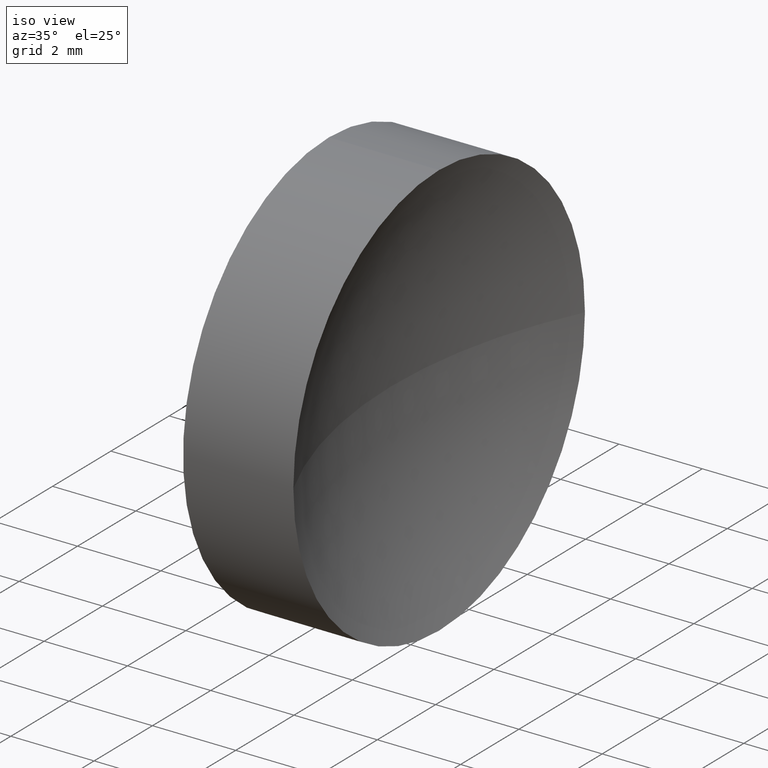
[diagram: clean part render]
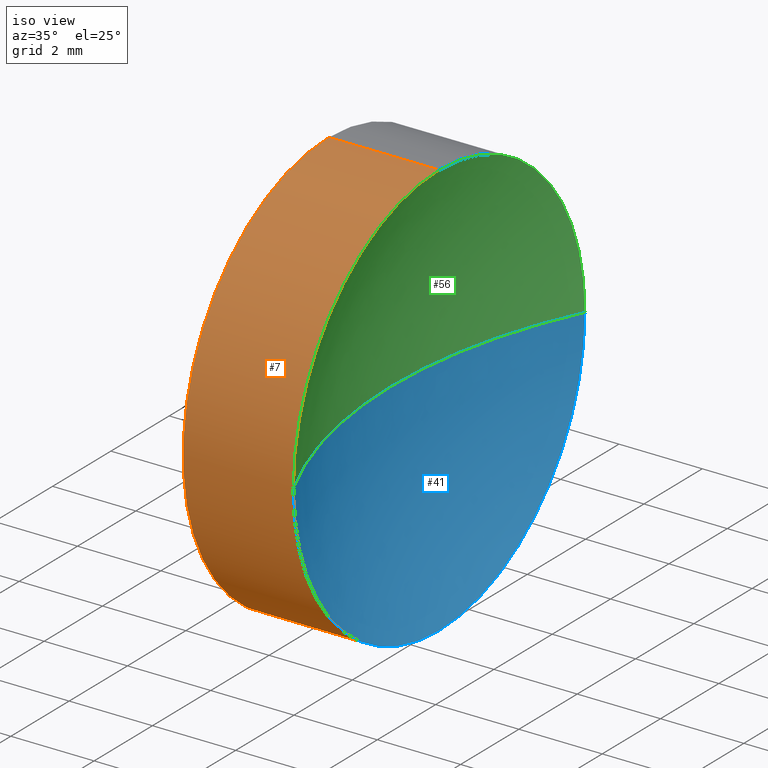
[diagram: same view with three faces highlighted in distinct colors, each labeled with its STEP entity id]
A machine part, iso view with three faces highlighted in distinct colors.
Their STEP definitions:

[orange] entity #7 — the highlighted cylindrical surface (partial cylindrical patch) has radius 5 mm, axis along (-1, -0, -0).
#3 = CARTESIAN_POINT ( 'NONE',  ( 47.70171121220715100, 28.47759563463748100, 0.0000000000000000000 ) ) ;
#4 = VERTEX_POINT ( 'NONE', #21 ) ;
#7 = ADVANCED_FACE ( 'NONE', ( #61 ), #143, .T. ) ;
#8 = ORIENTED_EDGE ( 'NONE', *, *, #125, .T. ) ;
#9 = VERTEX_POINT ( 'NONE', #63 ) ;
#15 = DIRECTION ( 'NONE',  ( -1.000000000000000000, -0.0000000000000000000, -0.0000000000000000000 ) ) ;
#20 = DIRECTION ( 'NONE',  ( -1.000000000000000000, -0.0000000000000000000, -0.0000000000000000000 ) ) ;
#21 = CARTESIAN_POINT ( 'NONE',  ( 50.34998972644154900, 28.47759563463748100, 4.999999999999990200 ) ) ;
#23 = VECTOR ( 'NONE', #15, 1000.000000000000000 ) ;
#31 = VECTOR ( 'NONE', #76, 1000.000000000000000 ) ;
#35 = DIRECTION ( 'NONE',  ( 0.0000000000000000000, 0.0000000000000000000, 1.000000000000000000 ) ) ;
#47 = ORIENTED_EDGE ( 'NONE', *, *, #118, .F. ) ;
#61 = FACE_OUTER_BOUND ( 'NONE', #154, .T. ) ;
#62 = AXIS2_PLACEMENT_3D ( 'NONE', #103, #79, #177 ) ;
#63 = CARTESIAN_POINT ( 'NONE',  ( 50.34998972644154900, 28.47759563463748100, -4.999999999999990200 ) ) ;
#65 = CIRCLE ( 'NONE', #138, 4.999999999999997300 ) ;
#68 = EDGE_CURVE ( 'NONE', #9, #85, #73, .T. ) ;
#72 = VERTEX_POINT ( 'NONE', #91 ) ;
#73 = LINE ( 'NONE', #105, #31 ) ;
#75 = CARTESIAN_POINT ( 'NONE',  ( 44.78209190302423800, 28.47759563463748100, 4.999999999999993800 ) ) ;
#76 = DIRECTION ( 'NONE',  ( -1.000000000000000000, -0.0000000000000000000, -0.0000000000000000000 ) ) ;
#79 = DIRECTION ( 'NONE',  ( -1.000000000000000000, -0.0000000000000000000, -0.0000000000000000000 ) ) ;
#81 = AXIS2_PLACEMENT_3D ( 'NONE', #134, #166, #150 ) ;
#85 = VERTEX_POINT ( 'NONE', #163 ) ;
#91 = CARTESIAN_POINT ( 'NONE',  ( 50.34998972644154900, 23.47759563463749200, 0.0000000000000000000 ) ) ;
#99 = LINE ( 'NONE', #75, #23 ) ;
#103 = CARTESIAN_POINT ( 'NONE',  ( 50.34998972644154900, 28.47759563463748100, 0.0000000000000000000 ) ) ;
#105 = CARTESIAN_POINT ( 'NONE',  ( 44.78209190302423800, 28.47759563463748100, -4.999999999999993800 ) ) ;
#108 = EDGE_CURVE ( 'NONE', #9, #72, #140, .T. ) ;
#109 = ORIENTED_EDGE ( 'NONE', *, *, #68, .F. ) ;
#115 = CIRCLE ( 'NONE', #62, 4.999999999999990200 ) ;
#118 = EDGE_CURVE ( 'NONE', #85, #148, #65, .T. ) ;
#119 = CARTESIAN_POINT ( 'NONE',  ( 50.34998972644154900, 28.47759563463748100, 0.0000000000000000000 ) ) ;
#120 = ORIENTED_EDGE ( 'NONE', *, *, #108, .T. ) ;
#125 = EDGE_CURVE ( 'NONE', #72, #4, #115, .T. ) ;
#134 = CARTESIAN_POINT ( 'NONE',  ( 44.78209190302423800, 28.47759563463748100, 0.0000000000000000000 ) ) ;
#138 = AXIS2_PLACEMENT_3D ( 'NONE', #3, #20, #35 ) ;
#140 = CIRCLE ( 'NONE', #185, 4.999999999999990200 ) ;
#143 = CYLINDRICAL_SURFACE ( 'NONE', #81, 4.999999999999993800 ) ;
#145 = DIRECTION ( 'NONE',  ( -1.000000000000000000, -0.0000000000000000000, -0.0000000000000000000 ) ) ;
#146 = EDGE_CURVE ( 'NONE', #4, #148, #99, .T. ) ;
#148 = VERTEX_POINT ( 'NONE', #164 ) ;
#150 = DIRECTION ( 'NONE',  ( 0.0000000000000000000, 0.0000000000000000000, 1.000000000000000000 ) ) ;
#154 = EDGE_LOOP ( 'NONE', ( #109, #120, #8, #172, #47 ) ) ;
#163 = CARTESIAN_POINT ( 'NONE',  ( 47.70171121220715100, 28.47759563463748100, -4.999999999999997300 ) ) ;
#164 = CARTESIAN_POINT ( 'NONE',  ( 47.70171121220715100, 28.47759563463748100, 4.999999999999997300 ) ) ;
#166 = DIRECTION ( 'NONE',  ( -1.000000000000000000, -0.0000000000000000000, -0.0000000000000000000 ) ) ;
#172 = ORIENTED_EDGE ( 'NONE', *, *, #146, .T. ) ;
#176 = DIRECTION ( 'NONE',  ( 0.0000000000000000000, 0.0000000000000000000, 1.000000000000000000 ) ) ;
#177 = DIRECTION ( 'NONE',  ( 0.0000000000000000000, 0.0000000000000000000, 1.000000000000000000 ) ) ;
#185 = AXIS2_PLACEMENT_3D ( 'NONE', #119, #145, #176 ) ;

[blue] entity #41 — the highlighted spherical surface has radius 11.46 mm.
#1 = CIRCLE ( 'NONE', #94, 11.45999999999999000 ) ;
#9 = VERTEX_POINT ( 'NONE', #63 ) ;
#17 = DIRECTION ( 'NONE',  ( 0.0000000000000000000, 0.0000000000000000000, 1.000000000000000000 ) ) ;
#24 = CARTESIAN_POINT ( 'NONE',  ( 60.66171121220714500, 28.47759563463748100, 0.0000000000000000000 ) ) ;
#25 = FACE_OUTER_BOUND ( 'NONE', #86, .T. ) ;
#29 = EDGE_CURVE ( 'NONE', #72, #100, #110, .T. ) ;
#30 = SPHERICAL_SURFACE ( 'NONE', #44, 11.45999999999999000 ) ;
#34 = DIRECTION ( 'NONE',  ( -1.000000000000000000, -0.0000000000000000000, -0.0000000000000000000 ) ) ;
#37 = DIRECTION ( 'NONE',  ( 0.0000000000000000000, -1.224646799147353200E-016, 1.000000000000000000 ) ) ;
#38 = CARTESIAN_POINT ( 'NONE',  ( 60.66171121220714500, 28.47759563463748100, 0.0000000000000000000 ) ) ;
#39 = DIRECTION ( 'NONE',  ( 0.0000000000000000000, 0.0000000000000000000, -1.000000000000000000 ) ) ;
#41 = ADVANCED_FACE ( 'NONE', ( #25 ), #30, .F. ) ;
#43 = VERTEX_POINT ( 'NONE', #106 ) ;
#44 = AXIS2_PLACEMENT_3D ( 'NONE', #24, #136, #178 ) ;
#49 = ORIENTED_EDGE ( 'NONE', *, *, #104, .T. ) ;
#50 = ORIENTED_EDGE ( 'NONE', *, *, #29, .F. ) ;
#52 = DIRECTION ( 'NONE',  ( -1.000000000000000000, 0.0000000000000000000, 0.0000000000000000000 ) ) ;
#55 = EDGE_CURVE ( 'NONE', #43, #9, #95, .T. ) ;
#57 = AXIS2_PLACEMENT_3D ( 'NONE', #38, #39, #52 ) ;
#63 = CARTESIAN_POINT ( 'NONE',  ( 50.34998972644154900, 28.47759563463748100, -4.999999999999990200 ) ) ;
#72 = VERTEX_POINT ( 'NONE', #91 ) ;
#86 = EDGE_LOOP ( 'NONE', ( #124, #49, #50, #137 ) ) ;
#91 = CARTESIAN_POINT ( 'NONE',  ( 50.34998972644154900, 23.47759563463749200, 0.0000000000000000000 ) ) ;
#94 = AXIS2_PLACEMENT_3D ( 'NONE', #151, #37, #132 ) ;
#95 = CIRCLE ( 'NONE', #127, 4.999999999999990200 ) ;
#100 = VERTEX_POINT ( 'NONE', #175 ) ;
#102 = CARTESIAN_POINT ( 'NONE',  ( 50.34998972644154900, 28.47759563463748100, 0.0000000000000000000 ) ) ;
#104 = EDGE_CURVE ( 'NONE', #43, #100, #1, .T. ) ;
#106 = CARTESIAN_POINT ( 'NONE',  ( 50.34998972644154900, 33.47759563463747400, 6.123233995736756400E-016 ) ) ;
#108 = EDGE_CURVE ( 'NONE', #9, #72, #140, .T. ) ;
#110 = CIRCLE ( 'NONE', #57, 11.45999999999999000 ) ;
#119 = CARTESIAN_POINT ( 'NONE',  ( 50.34998972644154900, 28.47759563463748100, 0.0000000000000000000 ) ) ;
#124 = ORIENTED_EDGE ( 'NONE', *, *, #55, .F. ) ;
#127 = AXIS2_PLACEMENT_3D ( 'NONE', #102, #34, #17 ) ;
#132 = DIRECTION ( 'NONE',  ( 0.0000000000000000000, -1.000000000000000000, -1.224646799147353200E-016 ) ) ;
#136 = DIRECTION ( 'NONE',  ( 0.0000000000000000000, 0.0000000000000000000, 1.000000000000000000 ) ) ;
#137 = ORIENTED_EDGE ( 'NONE', *, *, #108, .F. ) ;
#140 = CIRCLE ( 'NONE', #185, 4.999999999999990200 ) ;
#145 = DIRECTION ( 'NONE',  ( -1.000000000000000000, -0.0000000000000000000, -0.0000000000000000000 ) ) ;
#151 = CARTESIAN_POINT ( 'NONE',  ( 60.66171121220714500, 28.47759563463748100, 0.0000000000000000000 ) ) ;
#175 = CARTESIAN_POINT ( 'NONE',  ( 49.20171121220715800, 28.47759563463748100, 0.0000000000000000000 ) ) ;
#176 = DIRECTION ( 'NONE',  ( 0.0000000000000000000, 0.0000000000000000000, 1.000000000000000000 ) ) ;
#178 = DIRECTION ( 'NONE',  ( 0.0000000000000000000, -1.000000000000000000, 0.0000000000000000000 ) ) ;
#185 = AXIS2_PLACEMENT_3D ( 'NONE', #119, #145, #176 ) ;

[green] entity #56 — the highlighted spherical surface has radius 11.46 mm.
#1 = CIRCLE ( 'NONE', #94, 11.45999999999999000 ) ;
#2 = DIRECTION ( 'NONE',  ( 0.0000000000000000000, 0.0000000000000000000, 1.000000000000000000 ) ) ;
#4 = VERTEX_POINT ( 'NONE', #21 ) ;
#18 = CARTESIAN_POINT ( 'NONE',  ( 60.66171121220714500, 28.47759563463748100, 0.0000000000000000000 ) ) ;
#21 = CARTESIAN_POINT ( 'NONE',  ( 50.34998972644154900, 28.47759563463748100, 4.999999999999990200 ) ) ;
#29 = EDGE_CURVE ( 'NONE', #72, #100, #110, .T. ) ;
#37 = DIRECTION ( 'NONE',  ( 0.0000000000000000000, -1.224646799147353200E-016, 1.000000000000000000 ) ) ;
#38 = CARTESIAN_POINT ( 'NONE',  ( 60.66171121220714500, 28.47759563463748100, 0.0000000000000000000 ) ) ;
#39 = DIRECTION ( 'NONE',  ( 0.0000000000000000000, 0.0000000000000000000, -1.000000000000000000 ) ) ;
#40 = ORIENTED_EDGE ( 'NONE', *, *, #125, .F. ) ;
#43 = VERTEX_POINT ( 'NONE', #106 ) ;
#45 = SPHERICAL_SURFACE ( 'NONE', #88, 11.45999999999999000 ) ;
#48 = CARTESIAN_POINT ( 'NONE',  ( 50.34998972644154900, 28.47759563463748100, 0.0000000000000000000 ) ) ;
#52 = DIRECTION ( 'NONE',  ( -1.000000000000000000, 0.0000000000000000000, 0.0000000000000000000 ) ) ;
#56 = ADVANCED_FACE ( 'NONE', ( #67 ), #45, .F. ) ;
#57 = AXIS2_PLACEMENT_3D ( 'NONE', #38, #39, #52 ) ;
#62 = AXIS2_PLACEMENT_3D ( 'NONE', #103, #79, #177 ) ;
#67 = FACE_OUTER_BOUND ( 'NONE', #162, .T. ) ;
#72 = VERTEX_POINT ( 'NONE', #91 ) ;
#79 = DIRECTION ( 'NONE',  ( -1.000000000000000000, -0.0000000000000000000, -0.0000000000000000000 ) ) ;
#83 = ORIENTED_EDGE ( 'NONE', *, *, #29, .T. ) ;
#88 = AXIS2_PLACEMENT_3D ( 'NONE', #18, #2, #131 ) ;
#90 = AXIS2_PLACEMENT_3D ( 'NONE', #48, #121, #165 ) ;
#91 = CARTESIAN_POINT ( 'NONE',  ( 50.34998972644154900, 23.47759563463749200, 0.0000000000000000000 ) ) ;
#94 = AXIS2_PLACEMENT_3D ( 'NONE', #151, #37, #132 ) ;
#100 = VERTEX_POINT ( 'NONE', #175 ) ;
#103 = CARTESIAN_POINT ( 'NONE',  ( 50.34998972644154900, 28.47759563463748100, 0.0000000000000000000 ) ) ;
#104 = EDGE_CURVE ( 'NONE', #43, #100, #1, .T. ) ;
#106 = CARTESIAN_POINT ( 'NONE',  ( 50.34998972644154900, 33.47759563463747400, 6.123233995736756400E-016 ) ) ;
#110 = CIRCLE ( 'NONE', #57, 11.45999999999999000 ) ;
#115 = CIRCLE ( 'NONE', #62, 4.999999999999990200 ) ;
#117 = ORIENTED_EDGE ( 'NONE', *, *, #141, .F. ) ;
#121 = DIRECTION ( 'NONE',  ( -1.000000000000000000, -0.0000000000000000000, -0.0000000000000000000 ) ) ;
#125 = EDGE_CURVE ( 'NONE', #72, #4, #115, .T. ) ;
#131 = DIRECTION ( 'NONE',  ( 0.0000000000000000000, -1.000000000000000000, 0.0000000000000000000 ) ) ;
#132 = DIRECTION ( 'NONE',  ( 0.0000000000000000000, -1.000000000000000000, -1.224646799147353200E-016 ) ) ;
#141 = EDGE_CURVE ( 'NONE', #4, #43, #152, .T. ) ;
#151 = CARTESIAN_POINT ( 'NONE',  ( 60.66171121220714500, 28.47759563463748100, 0.0000000000000000000 ) ) ;
#152 = CIRCLE ( 'NONE', #90, 4.999999999999990200 ) ;
#162 = EDGE_LOOP ( 'NONE', ( #181, #117, #40, #83 ) ) ;
#165 = DIRECTION ( 'NONE',  ( 0.0000000000000000000, 0.0000000000000000000, 1.000000000000000000 ) ) ;
#175 = CARTESIAN_POINT ( 'NONE',  ( 49.20171121220715800, 28.47759563463748100, 0.0000000000000000000 ) ) ;
#177 = DIRECTION ( 'NONE',  ( 0.0000000000000000000, 0.0000000000000000000, 1.000000000000000000 ) ) ;
#181 = ORIENTED_EDGE ( 'NONE', *, *, #104, .F. ) ;